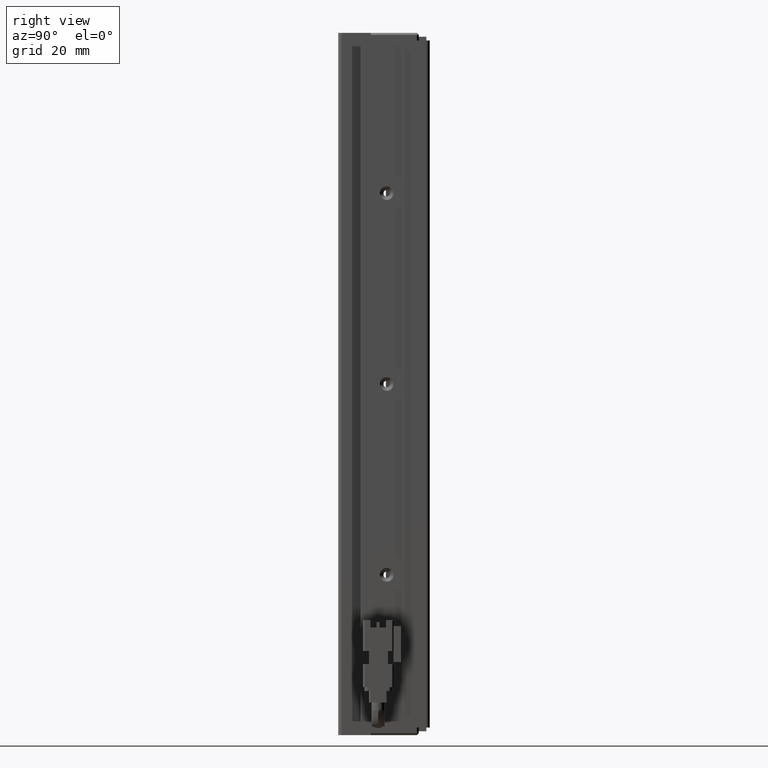
[diagram: clean part render]
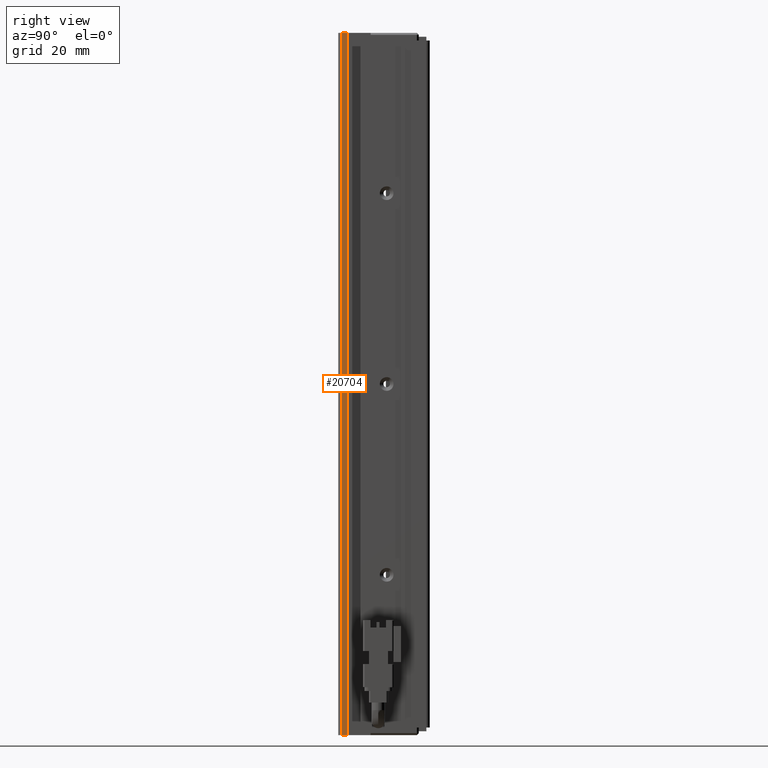
[diagram: same view with one face highlighted and labeled with its STEP entity id]
A machine part, right view. The second image highlights one B-rep face of the part: STEP entity #20704.
In plain terms, the highlighted planar face has unit normal (-1, 0, 0).
Its self-contained STEP definition (entity closure, byte-faithful):
#2424 = EDGE_CURVE ( 'NONE', #7656, #21757, #34136, .T. ) ;
#3050 = VECTOR ( 'NONE', #33159, 1000.000000000000000 ) ;
#3125 = LINE ( 'NONE', #7559, #31846 ) ;
#3511 = VECTOR ( 'NONE', #16683, 1000.000000000000000 ) ;
#3885 = DIRECTION ( 'NONE',  ( 0.0000000000000000000, 0.0000000000000000000, 1.000000000000000000 ) ) ;
#5032 = FACE_OUTER_BOUND ( 'NONE', #18462, .T. ) ;
#6632 = VERTEX_POINT ( 'NONE', #48326 ) ;
#7461 = DIRECTION ( 'NONE',  ( -1.000000000000000000, 1.334402673828310700E-015, 0.0000000000000000000 ) ) ;
#7559 = CARTESIAN_POINT ( 'NONE',  ( 51.42537974683541800, 13.29073232304837200, -23.00000000000000700 ) ) ;
#7656 = VERTEX_POINT ( 'NONE', #41528 ) ;
#10594 = EDGE_CURVE ( 'NONE', #39230, #6632, #3125, .T. ) ;
#13496 = LINE ( 'NONE', #35002, #3511 ) ;
#14083 = ORIENTED_EDGE ( 'NONE', *, *, #2424, .F. ) ;
#14783 = LINE ( 'NONE', #25962, #3050 ) ;
#15033 = EDGE_CURVE ( 'NONE', #21757, #39230, #13496, .T. ) ;
#15978 = VECTOR ( 'NONE', #3885, 1000.000000000000000 ) ;
#16683 = DIRECTION ( 'NONE',  ( 1.334402673828310700E-015, 1.000000000000000000, -0.0000000000000000000 ) ) ;
#18462 = EDGE_LOOP ( 'NONE', ( #25519, #28289, #14083, #19816 ) ) ;
#19816 = ORIENTED_EDGE ( 'NONE', *, *, #29185, .F. ) ;
#20704 = ADVANCED_FACE ( 'NONE', ( #5032 ), #44867, .F. ) ;
#21757 = VERTEX_POINT ( 'NONE', #32225 ) ;
#23661 = AXIS2_PLACEMENT_3D ( 'NONE', #33292, #7461, #40937 ) ;
#25519 = ORIENTED_EDGE ( 'NONE', *, *, #10594, .F. ) ;
#25962 = CARTESIAN_POINT ( 'NONE',  ( 51.42537974683541100, 7.083797468354424300, -207.0000000000000300 ) ) ;
#28289 = ORIENTED_EDGE ( 'NONE', *, *, #15033, .F. ) ;
#29185 = EDGE_CURVE ( 'NONE', #6632, #7656, #14783, .T. ) ;
#31846 = VECTOR ( 'NONE', #37496, 1000.000000000000000 ) ;
#32225 = CARTESIAN_POINT ( 'NONE',  ( 51.42537974683541800, 11.99073232304837000, -23.00000000000000700 ) ) ;
#33159 = DIRECTION ( 'NONE',  ( -1.334402673828310700E-015, -1.000000000000000000, 0.0000000000000000000 ) ) ;
#33292 = CARTESIAN_POINT ( 'NONE',  ( 51.42537974683541100, 7.083797468354424300, -23.00000000000000700 ) ) ;
#34136 = LINE ( 'NONE', #37156, #15978 ) ;
#34667 = CARTESIAN_POINT ( 'NONE',  ( 51.42537974683541800, 13.29073232304837200, -23.00000000000000700 ) ) ;
#35002 = CARTESIAN_POINT ( 'NONE',  ( 51.42537974683541100, 7.083797468354424300, -23.00000000000000700 ) ) ;
#37156 = CARTESIAN_POINT ( 'NONE',  ( 51.42537974683541800, 11.99073232304837000, -23.00000000000000700 ) ) ;
#37496 = DIRECTION ( 'NONE',  ( -0.0000000000000000000, 0.0000000000000000000, -1.000000000000000000 ) ) ;
#39230 = VERTEX_POINT ( 'NONE', #34667 ) ;
#40937 = DIRECTION ( 'NONE',  ( -1.334402673828310700E-015, -1.000000000000000000, 0.0000000000000000000 ) ) ;
#41528 = CARTESIAN_POINT ( 'NONE',  ( 51.42537974683541800, 11.99073232304837000, -207.0000000000000300 ) ) ;
#44867 = PLANE ( 'NONE',  #23661 ) ;
#48326 = CARTESIAN_POINT ( 'NONE',  ( 51.42537974683541800, 13.29073232304837200, -207.0000000000000300 ) ) ;